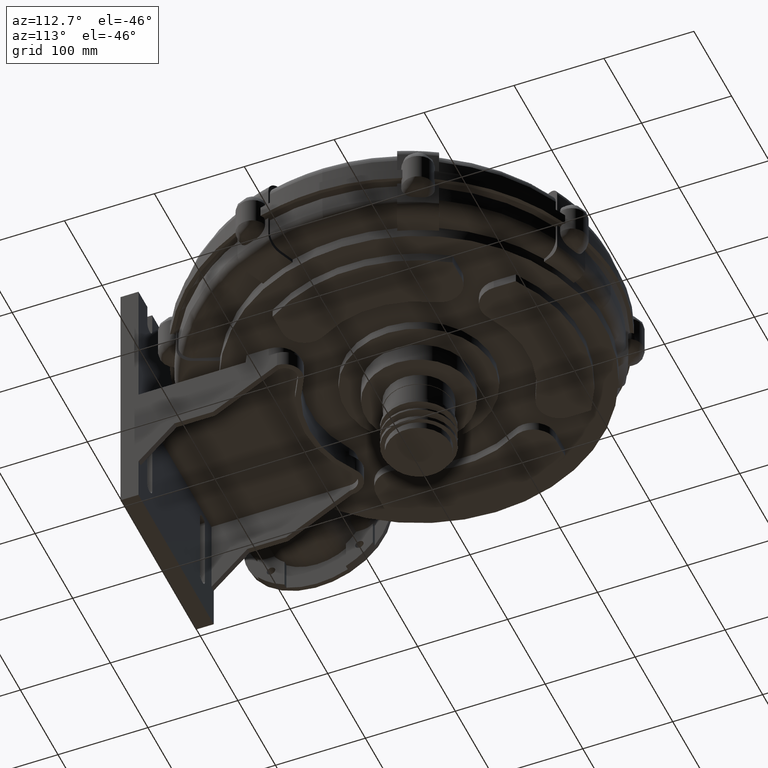
[diagram: clean part render]
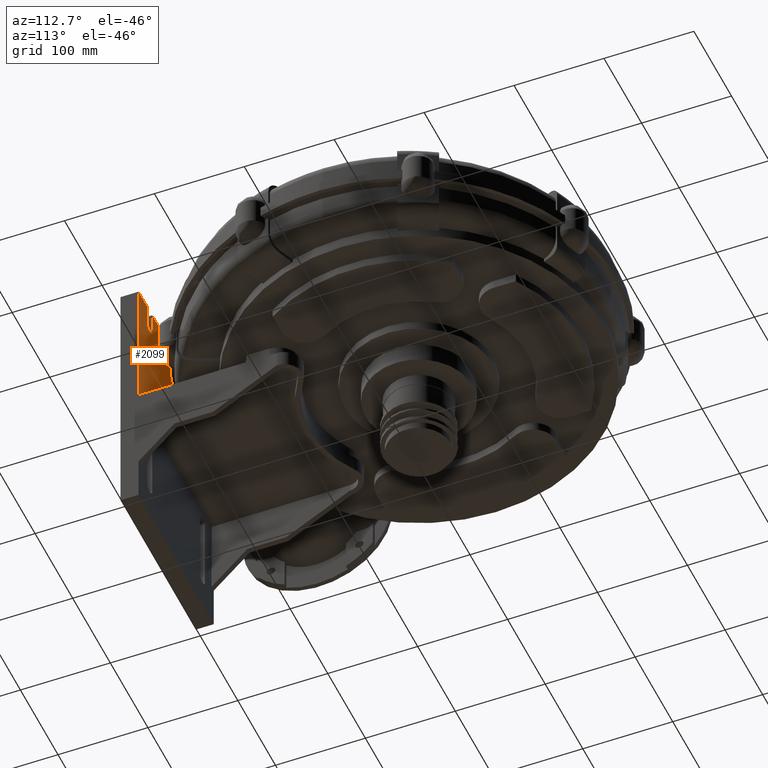
[diagram: same view with one face highlighted and labeled with its STEP entity id]
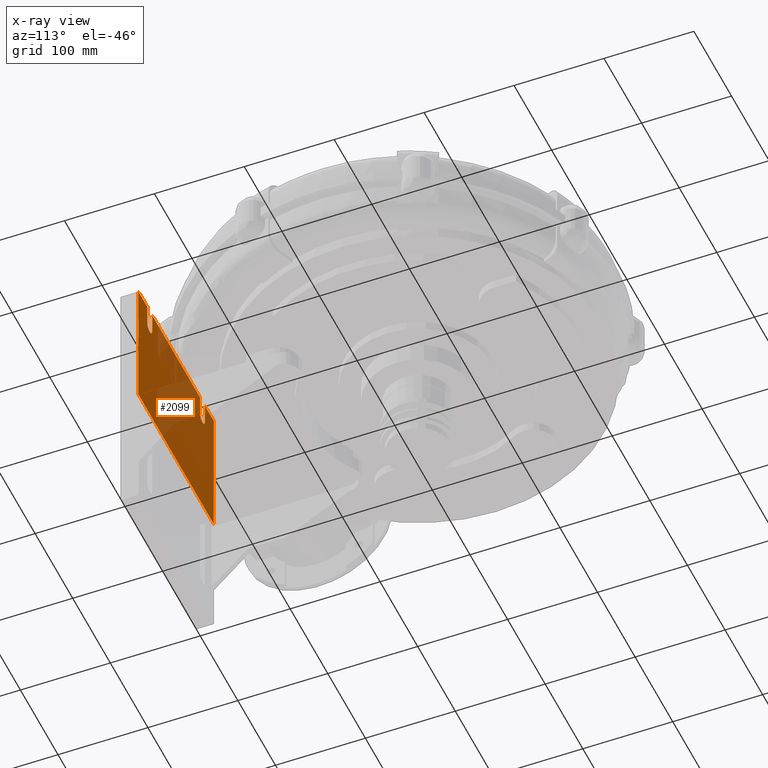
[diagram: x-ray of the same camera — body ghosted, the highlighted face saturated]
A machine part, auxiliary view. The second image highlights one B-rep face of the part: STEP entity #2099.
The next image is the same camera in x-ray: the body ghosted, the highlighted face saturated — about 53% of this face is hidden behind the body in this view.
In plain terms, the highlighted planar face has unit normal (0, 1, 0).
Its self-contained STEP definition (entity closure, byte-faithful):
#1449=CARTESIAN_POINT('',(-99.999999999999986,-285.0,18.00000000000022));
#1450=VERTEX_POINT('',#1449);
#1457=CARTESIAN_POINT('',(100.00000000000001,-285.0,18.000000000000057));
#1458=VERTEX_POINT('',#1457);
#1459=CARTESIAN_POINT('',(100.00000000000001,-285.0,18.000000000000057));
#1460=DIRECTION('',(-1.0,0.0,0.0));
#1461=VECTOR('',#1460,200.0);
#1462=LINE('',#1459,#1461);
#1463=EDGE_CURVE('',#1458,#1450,#1462,.T.);
#2003=CARTESIAN_POINT('',(3.077004E-014,-285.0,32.910544272262221));
#2004=DIRECTION('',(0.0,1.0,0.0));
#2005=DIRECTION('',(0.0,0.0,1.0));
#2006=AXIS2_PLACEMENT_3D('',#2003,#2004,#2005);
#2007=PLANE('',#2006);
#2008=ORIENTED_EDGE('',*,*,#1463,.T.);
#2009=CARTESIAN_POINT('',(-99.999999999999872,-284.99999999999994,170.00000000000023));
#2010=VERTEX_POINT('',#2009);
#2011=CARTESIAN_POINT('',(-99.999999999999872,-284.99999999999994,170.00000000000023));
#2012=DIRECTION('',(0.0,0.0,-1.0));
#2013=VECTOR('',#2012,152.0);
#2014=LINE('',#2011,#2013);
#2015=EDGE_CURVE('',#2010,#1450,#2014,.T.);
#2016=ORIENTED_EDGE('',*,*,#2015,.F.);
#2017=CARTESIAN_POINT('',(-76.499999999999872,-284.99999999999994,170.00000000000023));
#2018=VERTEX_POINT('',#2017);
#2019=CARTESIAN_POINT('',(-76.499999999999872,-284.99999999999994,170.00000000000023));
#2020=DIRECTION('',(-1.0,0.0,0.0));
#2021=VECTOR('',#2020,23.5);
#2022=LINE('',#2019,#2021);
#2023=EDGE_CURVE('',#2018,#2010,#2022,.T.);
#2024=ORIENTED_EDGE('',*,*,#2023,.F.);
#2025=CARTESIAN_POINT('',(-76.499999999999886,-284.99999999999994,146.00000000000023));
#2026=VERTEX_POINT('',#2025);
#2027=CARTESIAN_POINT('',(-76.499999999999886,-284.99999999999994,146.00000000000023));
#2028=DIRECTION('',(0.0,0.0,1.0));
#2029=VECTOR('',#2028,24.0);
#2030=LINE('',#2027,#2029);
#2031=EDGE_CURVE('',#2026,#2018,#2030,.T.);
#2032=ORIENTED_EDGE('',*,*,#2031,.F.);
#2033=CARTESIAN_POINT('',(-63.499999999999886,-284.99999999999994,146.0000000000002));
#2034=VERTEX_POINT('',#2033);
#2035=CARTESIAN_POINT('',(-69.999999999999886,-284.99999999999994,146.0000000000002));
#2036=DIRECTION('',(0.0,1.0,0.0));
#2037=DIRECTION('',(1.0,0.0,0.0));
#2038=AXIS2_PLACEMENT_3D('',#2035,#2036,#2037);
#2039=CIRCLE('',#2038,6.499999999999998);
#2040=EDGE_CURVE('',#2034,#2026,#2039,.T.);
#2041=ORIENTED_EDGE('',*,*,#2040,.F.);
#2042=CARTESIAN_POINT('',(-63.499999999999865,-284.99999999999994,170.00000000000023));
#2043=VERTEX_POINT('',#2042);
#2044=CARTESIAN_POINT('',(-63.499999999999872,-284.99999999999994,170.00000000000023));
#2045=DIRECTION('',(0.0,0.0,-1.0));
#2046=VECTOR('',#2045,24.0);
#2047=LINE('',#2044,#2046);
#2048=EDGE_CURVE('',#2043,#2034,#2047,.T.);
#2049=ORIENTED_EDGE('',*,*,#2048,.F.);
#2050=CARTESIAN_POINT('',(63.500000000000128,-284.99999999999994,170.00000000000011));
#2051=VERTEX_POINT('',#2050);
#2052=CARTESIAN_POINT('',(63.500000000000128,-284.99999999999994,170.00000000000011));
#2053=DIRECTION('',(-1.0,0.0,0.0));
#2054=VECTOR('',#2053,127.0);
#2055=LINE('',#2052,#2054);
#2056=EDGE_CURVE('',#2051,#2043,#2055,.T.);
#2057=ORIENTED_EDGE('',*,*,#2056,.F.);
#2058=CARTESIAN_POINT('',(63.500000000000099,-284.99999999999994,146.00000000000009));
#2059=VERTEX_POINT('',#2058);
#2060=CARTESIAN_POINT('',(63.500000000000099,-284.99999999999994,146.00000000000009));
#2061=DIRECTION('',(0.0,0.0,1.0));
#2062=VECTOR('',#2061,23.999999999999972);
#2063=LINE('',#2060,#2062);
#2064=EDGE_CURVE('',#2059,#2051,#2063,.T.);
#2065=ORIENTED_EDGE('',*,*,#2064,.F.);
#2066=CARTESIAN_POINT('',(76.500000000000114,-284.99999999999994,146.00000000000009));
#2067=VERTEX_POINT('',#2066);
#2068=CARTESIAN_POINT('',(70.000000000000128,-284.99999999999994,146.00000000000009));
#2069=DIRECTION('',(0.0,1.0,0.0));
#2070=DIRECTION('',(1.0,0.0,0.0));
#2071=AXIS2_PLACEMENT_3D('',#2068,#2069,#2070);
#2072=CIRCLE('',#2071,6.499999999999998);
#2073=EDGE_CURVE('',#2067,#2059,#2072,.T.);
#2074=ORIENTED_EDGE('',*,*,#2073,.F.);
#2075=CARTESIAN_POINT('',(76.500000000000142,-284.99999999999994,170.00000000000006));
#2076=VERTEX_POINT('',#2075);
#2077=CARTESIAN_POINT('',(76.500000000000142,-284.99999999999994,170.00000000000006));
#2078=DIRECTION('',(0.0,0.0,-1.0));
#2079=VECTOR('',#2078,24.0);
#2080=LINE('',#2077,#2079);
#2081=EDGE_CURVE('',#2076,#2067,#2080,.T.);
#2082=ORIENTED_EDGE('',*,*,#2081,.F.);
#2083=CARTESIAN_POINT('',(100.00000000000011,-284.99999999999994,170.00000000000011));
#2084=VERTEX_POINT('',#2083);
#2085=CARTESIAN_POINT('',(100.00000000000011,-284.99999999999994,170.00000000000011));
#2086=DIRECTION('',(-1.0,0.0,0.0));
#2087=VECTOR('',#2086,23.499999999999972);
#2088=LINE('',#2085,#2087);
#2089=EDGE_CURVE('',#2084,#2076,#2088,.T.);
#2090=ORIENTED_EDGE('',*,*,#2089,.F.);
#2091=CARTESIAN_POINT('',(100.00000000000001,-285.0,18.000000000000057));
#2092=DIRECTION('',(0.0,0.0,1.0));
#2093=VECTOR('',#2092,152.00000000000006);
#2094=LINE('',#2091,#2093);
#2095=EDGE_CURVE('',#1458,#2084,#2094,.T.);
#2096=ORIENTED_EDGE('',*,*,#2095,.F.);
#2097=EDGE_LOOP('',(#2008,#2016,#2024,#2032,#2041,#2049,#2057,#2065,#2074,#2082,#2090,#2096));
#2098=FACE_OUTER_BOUND('',#2097,.T.);
#2099=ADVANCED_FACE('',(#2098),#2007,.T.);